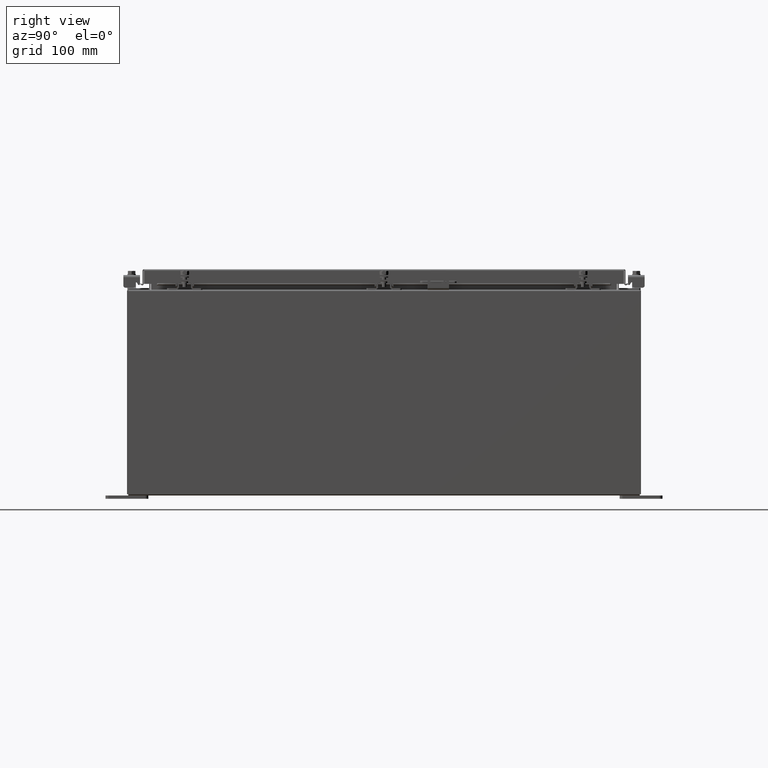
[diagram: clean part render]
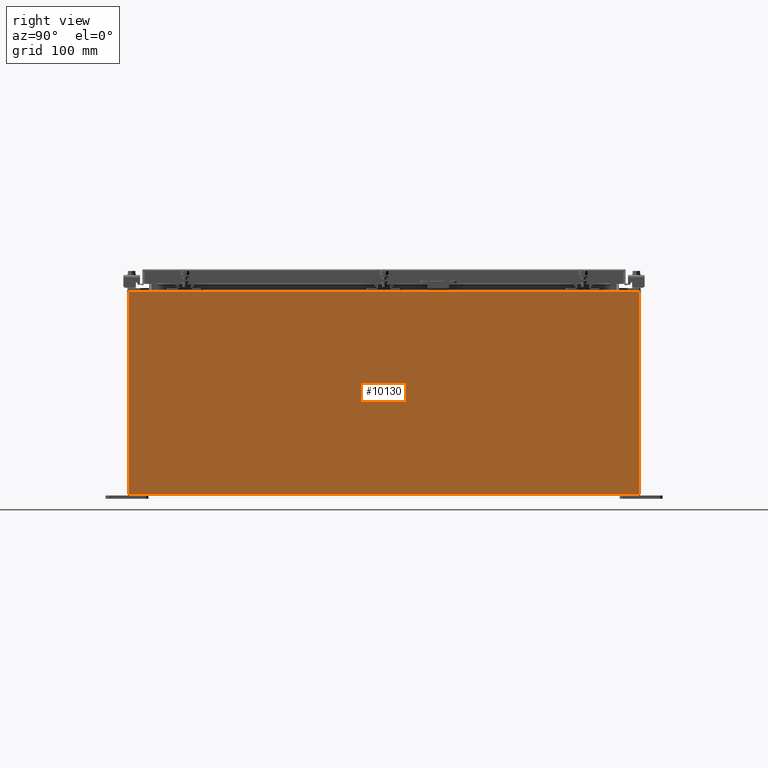
[diagram: same view with one face highlighted and labeled with its STEP entity id]
A machine part, right view. The second image highlights one B-rep face of the part: STEP entity #10130.
In plain terms, the highlighted planar face has unit normal (-1, 0, 0).
Its self-contained STEP definition (entity closure, byte-faithful):
#27 = CARTESIAN_POINT ( 'NONE',  ( 11.99999999999999600, 14.92529999999999800, 0.01299999999999766600 ) ) ;
#374 = FACE_OUTER_BOUND ( 'NONE', #24637, .T. ) ;
#798 = ORIENTED_EDGE ( 'NONE', *, *, #27271, .T. ) ;
#833 = VECTOR ( 'NONE', #4369, 39.37007874015748100 ) ;
#2672 = LINE ( 'NONE', #18974, #833 ) ;
#4103 = LINE ( 'NONE', #31178, #11035 ) ;
#4369 = DIRECTION ( 'NONE',  ( -0.0000000000000000000, -1.000000000000000000, -0.0000000000000000000 ) ) ;
#4689 = VERTEX_POINT ( 'NONE', #28225 ) ;
#5318 = ORIENTED_EDGE ( 'NONE', *, *, #32566, .T. ) ;
#7802 = DIRECTION ( 'NONE',  ( 2.549319440810500300E-031, -1.000000000000000000, 7.321388497823869400E-017 ) ) ;
#8401 = VECTOR ( 'NONE', #14306, 39.37007874015748100 ) ;
#9514 = EDGE_CURVE ( 'NONE', #18315, #4689, #4103, .T. ) ;
#10130 = ADVANCED_FACE ( 'NONE', ( #374 ), #28412, .F. ) ;
#10977 = DIRECTION ( 'NONE',  ( -1.000000000000000000, 0.0000000000000000000, 3.482016343714355100E-015 ) ) ;
#11035 = VECTOR ( 'NONE', #7802, 39.37007874015748100 ) ;
#12024 = VERTEX_POINT ( 'NONE', #16206 ) ;
#14306 = DIRECTION ( 'NONE',  ( -3.482016343714355500E-015, -1.832640180902292400E-016, -1.000000000000000000 ) ) ;
#14727 = VERTEX_POINT ( 'NONE', #16900 ) ;
#16163 = LINE ( 'NONE', #20047, #8401 ) ;
#16206 = CARTESIAN_POINT ( 'NONE',  ( 12.00000000000003700, -14.92529999999999800, 11.83760000000000000 ) ) ;
#16900 = CARTESIAN_POINT ( 'NONE',  ( 12.00000000000003700, 14.92529999999999800, 11.83760000000000000 ) ) ;
#18210 = EDGE_CURVE ( 'NONE', #12024, #4689, #16163, .T. ) ;
#18315 = VERTEX_POINT ( 'NONE', #27 ) ;
#18561 = ORIENTED_EDGE ( 'NONE', *, *, #9514, .F. ) ;
#18974 = CARTESIAN_POINT ( 'NONE',  ( 12.00000000000003700, 14.92529999999999800, 11.83760000000000000 ) ) ;
#20047 = CARTESIAN_POINT ( 'NONE',  ( 11.99999999999999600, -14.92530000000000000, -3.930446300884458700E-014 ) ) ;
#20119 = CARTESIAN_POINT ( 'NONE',  ( 11.99999999999999600, 14.92530000000000000, -3.930446300884458700E-014 ) ) ;
#22550 = CARTESIAN_POINT ( 'NONE',  ( 11.99999999999999600, 0.0000000000000000000, -4.205338505246925100E-014 ) ) ;
#24543 = ORIENTED_EDGE ( 'NONE', *, *, #18210, .T. ) ;
#24637 = EDGE_LOOP ( 'NONE', ( #798, #24543, #18561, #5318 ) ) ;
#27271 = EDGE_CURVE ( 'NONE', #14727, #12024, #2672, .T. ) ;
#28225 = CARTESIAN_POINT ( 'NONE',  ( 11.99999999999999600, -14.92530000000000000, 0.01299999999999997900 ) ) ;
#28412 = PLANE ( 'NONE',  #36723 ) ;
#31178 = CARTESIAN_POINT ( 'NONE',  ( 11.99999999999999600, -14.92529999999999800, 0.01299999999999985200 ) ) ;
#31390 = DIRECTION ( 'NONE',  ( 3.482016343714355100E-015, 0.0000000000000000000, 1.000000000000000000 ) ) ;
#31758 = DIRECTION ( 'NONE',  ( 3.482016343714355500E-015, -1.832640180902292400E-016, 1.000000000000000000 ) ) ;
#32566 = EDGE_CURVE ( 'NONE', #18315, #14727, #33515, .T. ) ;
#33515 = LINE ( 'NONE', #20119, #36267 ) ;
#36267 = VECTOR ( 'NONE', #31758, 39.37007874015748100 ) ;
#36723 = AXIS2_PLACEMENT_3D ( 'NONE', #22550, #10977, #31390 ) ;